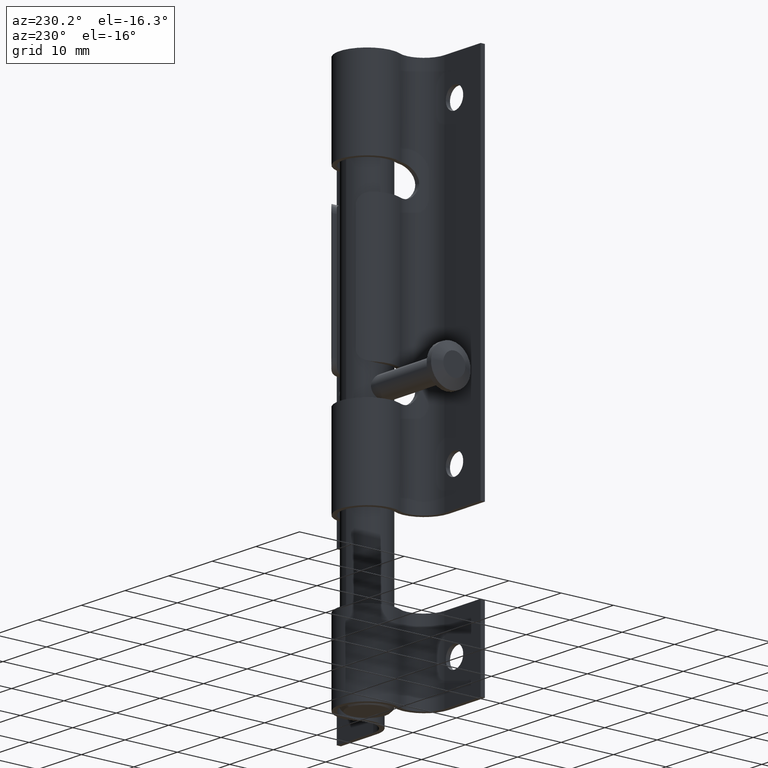
[diagram: clean part render]
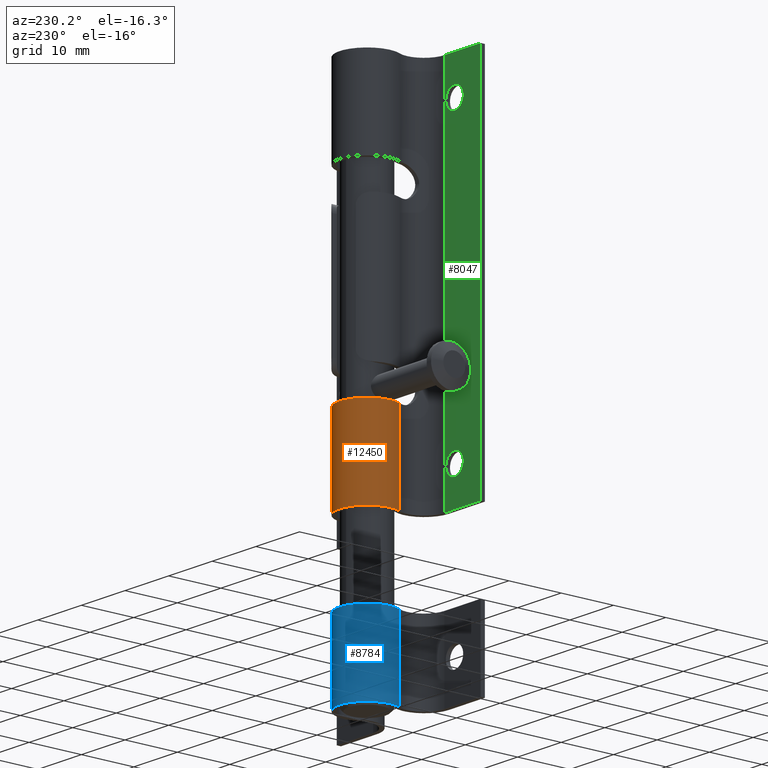
[diagram: same view with three faces highlighted in distinct colors, each labeled with its STEP entity id]
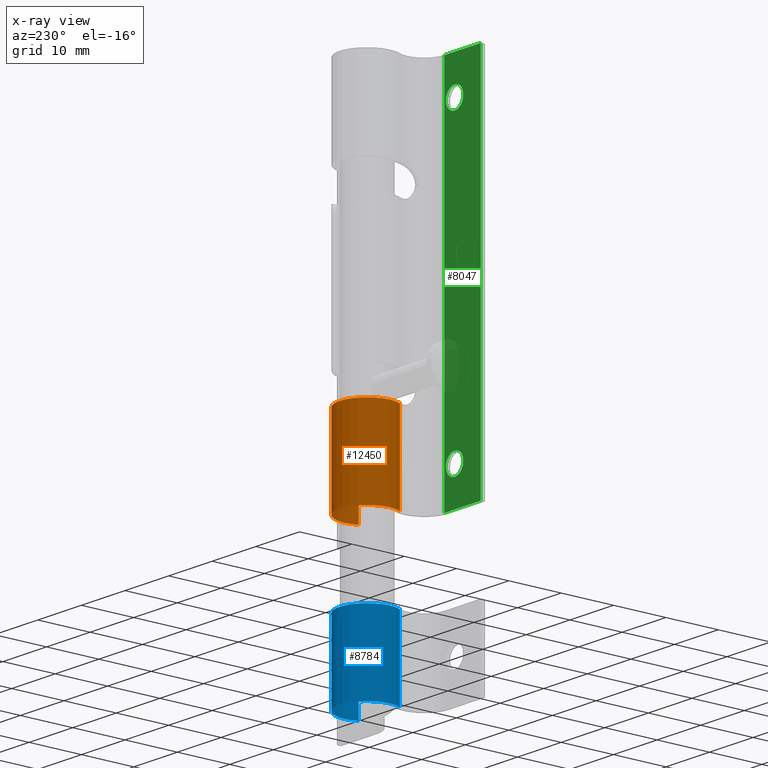
[diagram: x-ray of the same camera — body ghosted, the three highlighted faces saturated]
A machine part, auxiliary view with three faces highlighted in distinct colors.
The next image is the same camera in x-ray (body ghosted, the three faces saturated) — at least one of them is partly hidden behind the body in this view.
Their STEP definitions:

[orange] entity #12450 — the highlighted cylindrical surface (edge-blend (fillet) strip) has radius 5.25 mm, axis along (-0, -0, -1).
#101 = ORIENTED_EDGE ( 'NONE', *, *, #13335, .T. ) ;
#212 = VERTEX_POINT ( 'NONE', #12349 ) ;
#216 = LINE ( 'NONE', #14268, #10442 ) ;
#517 = CARTESIAN_POINT ( 'NONE',  ( 4.704441422664571881, 6.419607135970900380, -35.00000000000000000 ) ) ;
#822 = EDGE_CURVE ( 'NONE', #212, #12686, #216, .T. ) ;
#1790 = VERTEX_POINT ( 'NONE', #2978 ) ;
#2378 = CARTESIAN_POINT ( 'NONE',  ( 0.000000000000000000, 8.749999999999998224, 35.00000000000000000 ) ) ;
#2835 = DIRECTION ( 'NONE',  ( -0.000000000000000000, -0.000000000000000000, -1.000000000000000000 ) ) ;
#2978 = CARTESIAN_POINT ( 'NONE',  ( -4.704441422664572769, 6.419607135970900380, -35.00000000000000000 ) ) ;
#3334 = CARTESIAN_POINT ( 'NONE',  ( 0.000000000000000000, 8.749999999999998224, -18.49999999999999645 ) ) ;
#3447 = DIRECTION ( 'NONE',  ( -0.000000000000000000, -0.000000000000000000, -1.000000000000000000 ) ) ;
#3573 = DIRECTION ( 'NONE',  ( -0.000000000000000000, -0.000000000000000000, -1.000000000000000000 ) ) ;
#3586 = ORIENTED_EDGE ( 'NONE', *, *, #15365, .T. ) ;
#3988 = CARTESIAN_POINT ( 'NONE',  ( -4.704441422664572769, 6.419607135970900380, 35.00000000000000000 ) ) ;
#4249 = CARTESIAN_POINT ( 'NONE',  ( 0.000000000000000000, 8.749999999999998224, -35.00000000000000000 ) ) ;
#4722 = ORIENTED_EDGE ( 'NONE', *, *, #7508, .F. ) ;
#4869 = DIRECTION ( 'NONE',  ( -1.000000000000000000, 0.000000000000000000, 0.000000000000000000 ) ) ;
#4912 = CIRCLE ( 'NONE', #7430, 5.250000000000000888 ) ;
#6253 = FACE_OUTER_BOUND ( 'NONE', #14545, .T. ) ;
#6576 = CIRCLE ( 'NONE', #8922, 5.250000000000000888 ) ;
#6764 = DIRECTION ( 'NONE',  ( -1.000000000000000000, 0.000000000000000000, 0.000000000000000000 ) ) ;
#7430 = AXIS2_PLACEMENT_3D ( 'NONE', #3334, #15105, #14050 ) ;
#7472 = ORIENTED_EDGE ( 'NONE', *, *, #822, .T. ) ;
#7508 = EDGE_CURVE ( 'NONE', #7551, #1790, #8346, .T. ) ;
#7551 = VERTEX_POINT ( 'NONE', #12350 ) ;
#7770 = AXIS2_PLACEMENT_3D ( 'NONE', #2378, #3573, #4869 ) ;
#8346 = LINE ( 'NONE', #3988, #11881 ) ;
#8922 = AXIS2_PLACEMENT_3D ( 'NONE', #4249, #13813, #6764 ) ;
#10442 = VECTOR ( 'NONE', #3447, 1000.000000000000000 ) ;
#11881 = VECTOR ( 'NONE', #2835, 1000.000000000000000 ) ;
#12349 = CARTESIAN_POINT ( 'NONE',  ( 4.704441422664571881, 6.419607135970900380, -18.49999999999999645 ) ) ;
#12350 = CARTESIAN_POINT ( 'NONE',  ( -4.704441422664572769, 6.419607135970900380, -18.49999999999999645 ) ) ;
#12450 = ADVANCED_FACE ( 'NONE', ( #6253 ), #14250, .T. ) ;
#12686 = VERTEX_POINT ( 'NONE', #517 ) ;
#13335 = EDGE_CURVE ( 'NONE', #7551, #212, #4912, .T. ) ;
#13813 = DIRECTION ( 'NONE',  ( 0.000000000000000000, 0.000000000000000000, 1.000000000000000000 ) ) ;
#14050 = DIRECTION ( 'NONE',  ( 0.000000000000000000, 1.000000000000000000, -6.608470384673550038E-16 ) ) ;
#14250 = CYLINDRICAL_SURFACE ( 'NONE', #7770, 5.250000000000000888 ) ;
#14268 = CARTESIAN_POINT ( 'NONE',  ( 4.704441422664571881, 6.419607135970900380, 35.00000000000000000 ) ) ;
#14545 = EDGE_LOOP ( 'NONE', ( #4722, #101, #7472, #3586 ) ) ;
#15105 = DIRECTION ( 'NONE',  ( -0.000000000000000000, -5.337610695313251385E-16, -1.000000000000000000 ) ) ;
#15365 = EDGE_CURVE ( 'NONE', #12686, #1790, #6576, .T. ) ;

[blue] entity #8784 — the highlighted cylindrical surface (edge-blend (fillet) strip) has radius 5.25 mm, axis along (-0, -0, -1).
#200 = AXIS2_PLACEMENT_3D ( 'NONE', #3686, #3737, #7324 ) ;
#261 = DIRECTION ( 'NONE',  ( -1.000000000000000000, 0.000000000000000000, 0.000000000000000000 ) ) ;
#514 = ORIENTED_EDGE ( 'NONE', *, *, #6697, .F. ) ;
#552 = CYLINDRICAL_SURFACE ( 'NONE', #11589, 5.250000000000000888 ) ;
#1861 = VERTEX_POINT ( 'NONE', #15262 ) ;
#2135 = ORIENTED_EDGE ( 'NONE', *, *, #2231, .T. ) ;
#2231 = EDGE_CURVE ( 'NONE', #2509, #14437, #12444, .T. ) ;
#2509 = VERTEX_POINT ( 'NONE', #2891 ) ;
#2769 = EDGE_CURVE ( 'NONE', #1861, #4833, #12811, .T. ) ;
#2891 = CARTESIAN_POINT ( 'NONE',  ( 4.704441422664571881, 6.419607135970900380, -7.500000000000000000 ) ) ;
#3686 = CARTESIAN_POINT ( 'NONE',  ( 0.000000000000000000, 8.749999999999998224, -7.500000000000000000 ) ) ;
#3696 = FACE_OUTER_BOUND ( 'NONE', #5499, .T. ) ;
#3737 = DIRECTION ( 'NONE',  ( 0.000000000000000000, 0.000000000000000000, 1.000000000000000000 ) ) ;
#4230 = VECTOR ( 'NONE', #6166, 1000.000000000000000 ) ;
#4610 = EDGE_CURVE ( 'NONE', #1861, #2509, #7385, .T. ) ;
#4833 = VERTEX_POINT ( 'NONE', #11193 ) ;
#4861 = CARTESIAN_POINT ( 'NONE',  ( 0.000000000000000000, 8.749999999999998224, 7.500000000000000000 ) ) ;
#4944 = AXIS2_PLACEMENT_3D ( 'NONE', #4861, #10848, #261 ) ;
#5499 = EDGE_LOOP ( 'NONE', ( #2135, #514, #9937, #9171 ) ) ;
#6166 = DIRECTION ( 'NONE',  ( -0.000000000000000000, -0.000000000000000000, -1.000000000000000000 ) ) ;
#6697 = EDGE_CURVE ( 'NONE', #4833, #14437, #7783, .T. ) ;
#7001 = DIRECTION ( 'NONE',  ( -0.000000000000000000, -0.000000000000000000, -1.000000000000000000 ) ) ;
#7324 = DIRECTION ( 'NONE',  ( -1.000000000000000000, 0.000000000000000000, 0.000000000000000000 ) ) ;
#7385 = LINE ( 'NONE', #13412, #4230 ) ;
#7783 = LINE ( 'NONE', #11157, #13744 ) ;
#8784 = ADVANCED_FACE ( 'NONE', ( #3696 ), #552, .T. ) ;
#9171 = ORIENTED_EDGE ( 'NONE', *, *, #4610, .T. ) ;
#9937 = ORIENTED_EDGE ( 'NONE', *, *, #2769, .F. ) ;
#9996 = CARTESIAN_POINT ( 'NONE',  ( -4.704441422664572769, 6.419607135970900380, -7.500000000000000000 ) ) ;
#10848 = DIRECTION ( 'NONE',  ( 0.000000000000000000, 0.000000000000000000, 1.000000000000000000 ) ) ;
#11157 = CARTESIAN_POINT ( 'NONE',  ( -4.704441422664572769, 6.419607135970900380, 7.500000000000000000 ) ) ;
#11193 = CARTESIAN_POINT ( 'NONE',  ( -4.704441422664572769, 6.419607135970900380, 7.500000000000000000 ) ) ;
#11589 = AXIS2_PLACEMENT_3D ( 'NONE', #15005, #7001, #11810 ) ;
#11810 = DIRECTION ( 'NONE',  ( -1.000000000000000000, 0.000000000000000000, 0.000000000000000000 ) ) ;
#12088 = DIRECTION ( 'NONE',  ( -0.000000000000000000, -0.000000000000000000, -1.000000000000000000 ) ) ;
#12444 = CIRCLE ( 'NONE', #200, 5.250000000000000888 ) ;
#12811 = CIRCLE ( 'NONE', #4944, 5.250000000000000888 ) ;
#13412 = CARTESIAN_POINT ( 'NONE',  ( 4.704441422664571881, 6.419607135970900380, 7.500000000000000000 ) ) ;
#13744 = VECTOR ( 'NONE', #12088, 1000.000000000000000 ) ;
#14437 = VERTEX_POINT ( 'NONE', #9996 ) ;
#15005 = CARTESIAN_POINT ( 'NONE',  ( 0.000000000000000000, 8.749999999999998224, 7.500000000000000000 ) ) ;
#15262 = CARTESIAN_POINT ( 'NONE',  ( 4.704441422664571881, 6.419607135970900380, 7.500000000000000000 ) ) ;

[green] entity #8047 — the highlighted planar face has unit normal (0, -1, 0).
#188 = DIRECTION ( 'NONE',  ( -0.000000000000000000, -0.000000000000000000, -1.000000000000000000 ) ) ;
#425 = DIRECTION ( 'NONE',  ( -0.000000000000000000, -0.000000000000000000, -1.000000000000000000 ) ) ;
#935 = CARTESIAN_POINT ( 'NONE',  ( -10.50000000000000000, 0.8000000000000000444, 30.00000000000000711 ) ) ;
#1041 = EDGE_LOOP ( 'NONE', ( #2054 ) ) ;
#1480 = VECTOR ( 'NONE', #425, 1000.000000000000000 ) ;
#1782 = VERTEX_POINT ( 'NONE', #6426 ) ;
#2054 = ORIENTED_EDGE ( 'NONE', *, *, #6619, .F. ) ;
#2342 = EDGE_CURVE ( 'NONE', #1782, #12358, #10037, .T. ) ;
#2915 = VERTEX_POINT ( 'NONE', #11057 ) ;
#3575 = VERTEX_POINT ( 'NONE', #10397 ) ;
#3749 = CARTESIAN_POINT ( 'NONE',  ( -8.192006389780432940, 0.7999999999999994893, 35.00000000000000000 ) ) ;
#4000 = VECTOR ( 'NONE', #8146, 1000.000000000000000 ) ;
#4180 = EDGE_LOOP ( 'NONE', ( #7392 ) ) ;
#4674 = DIRECTION ( 'NONE',  ( 0.000000000000000000, -1.000000000000000000, 0.000000000000000000 ) ) ;
#5207 = DIRECTION ( 'NONE',  ( -1.000000000000000000, -0.000000000000000000, -0.000000000000000000 ) ) ;
#5758 = CIRCLE ( 'NONE', #6107, 2.000000000000001776 ) ;
#6107 = AXIS2_PLACEMENT_3D ( 'NONE', #9903, #14581, #12184 ) ;
#6313 = FACE_OUTER_BOUND ( 'NONE', #14615, .T. ) ;
#6426 = CARTESIAN_POINT ( 'NONE',  ( -16.50000000000000000, 0.8000000000000000444, 35.00000000000000000 ) ) ;
#6619 = EDGE_CURVE ( 'NONE', #3575, #3575, #5758, .T. ) ;
#6656 = CIRCLE ( 'NONE', #13434, 2.000000000000001776 ) ;
#6703 = FACE_BOUND ( 'NONE', #4180, .T. ) ;
#7392 = ORIENTED_EDGE ( 'NONE', *, *, #11113, .F. ) ;
#8047 = ADVANCED_FACE ( 'NONE', ( #6703, #8328, #6313 ), #9472, .F. ) ;
#8146 = DIRECTION ( 'NONE',  ( -1.000000000000000000, -0.000000000000000000, -0.000000000000000000 ) ) ;
#8328 = FACE_BOUND ( 'NONE', #1041, .T. ) ;
#9207 = VECTOR ( 'NONE', #188, 1000.000000000000000 ) ;
#9472 = PLANE ( 'NONE',  #10596 ) ;
#9785 = LINE ( 'NONE', #14030, #4000 ) ;
#9903 = CARTESIAN_POINT ( 'NONE',  ( -10.50000000000000000, 0.8000000000000000444, -27.99999999999999645 ) ) ;
#10003 = DIRECTION ( 'NONE',  ( 0.000000000000000000, 1.000000000000000000, 0.000000000000000000 ) ) ;
#10037 = LINE ( 'NONE', #13392, #1480 ) ;
#10368 = VECTOR ( 'NONE', #5207, 1000.000000000000000 ) ;
#10397 = CARTESIAN_POINT ( 'NONE',  ( -10.50000000000000000, 0.8000000000000000444, -25.99999999999999645 ) ) ;
#10596 = AXIS2_PLACEMENT_3D ( 'NONE', #13043, #4674, #10623 ) ;
#10612 = CARTESIAN_POINT ( 'NONE',  ( -16.50000000000000000, 0.8000000000000000444, -35.00000000000000000 ) ) ;
#10623 = DIRECTION ( 'NONE',  ( 0.000000000000000000, -0.000000000000000000, -1.000000000000000000 ) ) ;
#11057 = CARTESIAN_POINT ( 'NONE',  ( -8.192006389780432940, 0.7999999999999994893, 35.00000000000000000 ) ) ;
#11113 = EDGE_CURVE ( 'NONE', #13814, #13814, #6656, .T. ) ;
#11148 = DIRECTION ( 'NONE',  ( 0.000000000000000000, 0.000000000000000000, 1.000000000000000000 ) ) ;
#11250 = CARTESIAN_POINT ( 'NONE',  ( -10.50000000000000000, 0.8000000000000000444, 28.00000000000000355 ) ) ;
#11685 = VERTEX_POINT ( 'NONE', #14018 ) ;
#11701 = EDGE_CURVE ( 'NONE', #2915, #1782, #13495, .T. ) ;
#12184 = DIRECTION ( 'NONE',  ( 0.000000000000000000, 0.000000000000000000, 1.000000000000000000 ) ) ;
#12294 = EDGE_CURVE ( 'NONE', #11685, #12358, #9785, .T. ) ;
#12322 = CARTESIAN_POINT ( 'NONE',  ( -16.50000000000000000, 0.8000000000000000444, 35.00000000000000000 ) ) ;
#12358 = VERTEX_POINT ( 'NONE', #10612 ) ;
#13043 = CARTESIAN_POINT ( 'NONE',  ( -16.50000000000000000, 0.8000000000000000444, 35.00000000000000000 ) ) ;
#13201 = ORIENTED_EDGE ( 'NONE', *, *, #13410, .T. ) ;
#13392 = CARTESIAN_POINT ( 'NONE',  ( -16.50000000000000000, 0.8000000000000000444, 35.00000000000000000 ) ) ;
#13409 = ORIENTED_EDGE ( 'NONE', *, *, #12294, .T. ) ;
#13410 = EDGE_CURVE ( 'NONE', #2915, #11685, #14412, .T. ) ;
#13434 = AXIS2_PLACEMENT_3D ( 'NONE', #11250, #10003, #11148 ) ;
#13495 = LINE ( 'NONE', #12322, #10368 ) ;
#13814 = VERTEX_POINT ( 'NONE', #935 ) ;
#14018 = CARTESIAN_POINT ( 'NONE',  ( -8.192006389780432940, 0.7999999999999994893, -35.00000000000000000 ) ) ;
#14030 = CARTESIAN_POINT ( 'NONE',  ( -16.50000000000000000, 0.8000000000000000444, -35.00000000000000000 ) ) ;
#14412 = LINE ( 'NONE', #3749, #9207 ) ;
#14523 = ORIENTED_EDGE ( 'NONE', *, *, #11701, .F. ) ;
#14581 = DIRECTION ( 'NONE',  ( 0.000000000000000000, 1.000000000000000000, 0.000000000000000000 ) ) ;
#14615 = EDGE_LOOP ( 'NONE', ( #13409, #15063, #14523, #13201 ) ) ;
#15063 = ORIENTED_EDGE ( 'NONE', *, *, #2342, .F. ) ;